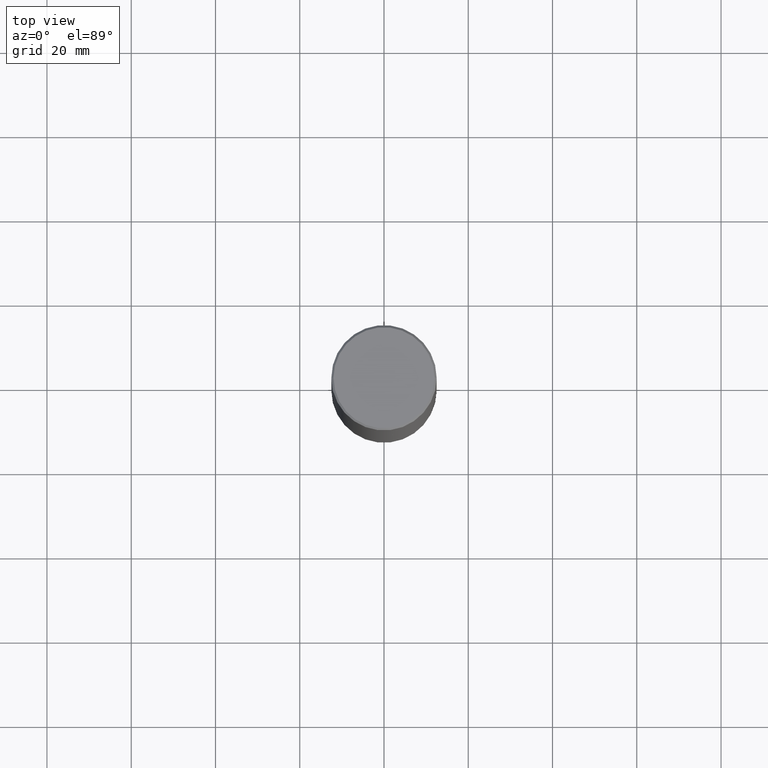
[diagram: clean part render]
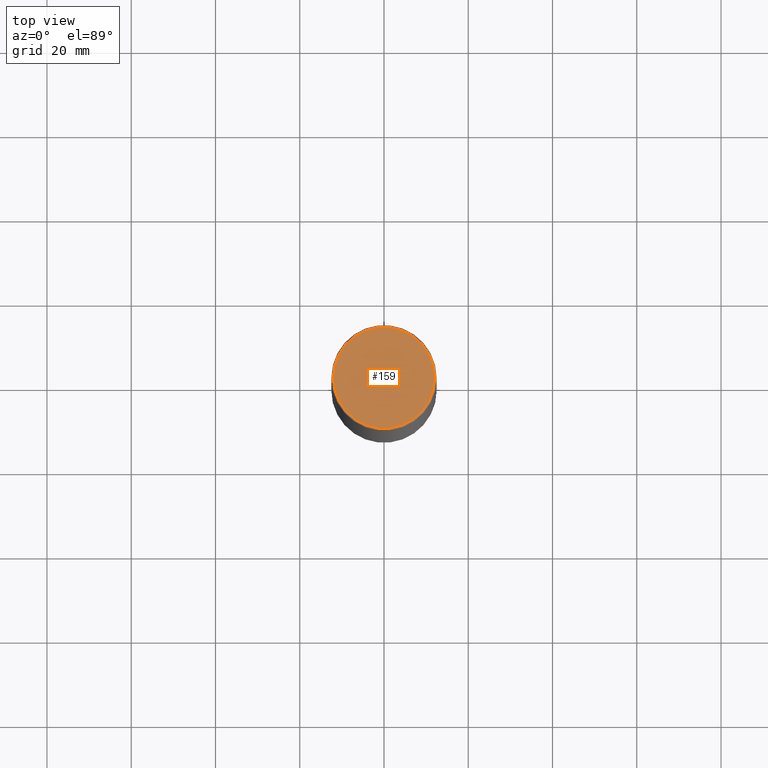
[diagram: same view with one face highlighted and labeled with its STEP entity id]
A machine part, top view. The second image highlights one B-rep face of the part: STEP entity #159.
In plain terms, the highlighted planar face has unit normal (0, -0, -1).
Its self-contained STEP definition (entity closure, byte-faithful):
#9 = AXIS2_PLACEMENT_3D ( 'NONE', #367, #116, #120 ) ;
#28 = VERTEX_POINT ( 'NONE', #375 ) ;
#35 = EDGE_CURVE ( 'NONE', #153, #28, #278, .T. ) ;
#55 = EDGE_CURVE ( 'NONE', #28, #153, #268, .T. ) ;
#80 = FACE_OUTER_BOUND ( 'NONE', #381, .T. ) ;
#89 = PLANE ( 'NONE',  #285 ) ;
#116 = DIRECTION ( 'NONE',  ( -2.445468806185136597E-29, 3.491481338843145583E-15, 1.000000000000000000 ) ) ;
#120 = DIRECTION ( 'NONE',  ( 1.000000000000000000, -6.982962677686265922E-15, 4.882029041999364017E-29 ) ) ;
#140 = AXIS2_PLACEMENT_3D ( 'NONE', #334, #145, #148 ) ;
#145 = DIRECTION ( 'NONE',  ( -2.445468806185136597E-29, 3.491481338843145583E-15, 1.000000000000000000 ) ) ;
#148 = DIRECTION ( 'NONE',  ( 1.000000000000000000, -6.982962677686265922E-15, 4.882029041999364017E-29 ) ) ;
#153 = VERTEX_POINT ( 'NONE', #267 ) ;
#159 = ADVANCED_FACE ( 'NONE', ( #80 ), #89, .F. ) ;
#174 = DIRECTION ( 'NONE',  ( -1.000000000000000000, 6.982962677686265922E-15, -4.876176775795935793E-29 ) ) ;
#189 = ORIENTED_EDGE ( 'NONE', *, *, #55, .T. ) ;
#216 = CARTESIAN_POINT ( 'NONE',  ( 3.297005828269569180E-15, 0.4721499999999997921, -1.507642001961476820E-15 ) ) ;
#267 = CARTESIAN_POINT ( 'NONE',  ( 0.4721499999999997921, -3.342703923013974974E-15, 2.817218243466503973E-16 ) ) ;
#268 = CIRCLE ( 'NONE', #9, 0.4721499999999997921 ) ;
#278 = CIRCLE ( 'NONE', #140, 0.4721499999999997921 ) ;
#285 = AXIS2_PLACEMENT_3D ( 'NONE', #216, #344, #174 ) ;
#331 = ORIENTED_EDGE ( 'NONE', *, *, #35, .T. ) ;
#334 = CARTESIAN_POINT ( 'NONE',  ( -6.889419334612450925E-45, 9.836264924510951028E-31, 2.817218243466271259E-16 ) ) ;
#344 = DIRECTION ( 'NONE',  ( 2.438088387897960049E-29, -3.491481338843145188E-15, -1.000000000000000000 ) ) ;
#367 = CARTESIAN_POINT ( 'NONE',  ( -6.889419334612450925E-45, 9.836264924510951028E-31, 2.817218243466271259E-16 ) ) ;
#375 = CARTESIAN_POINT ( 'NONE',  ( -0.4721499999999997921, 3.331920641658001618E-15, 2.817218243466039531E-16 ) ) ;
#381 = EDGE_LOOP ( 'NONE', ( #189, #331 ) ) ;